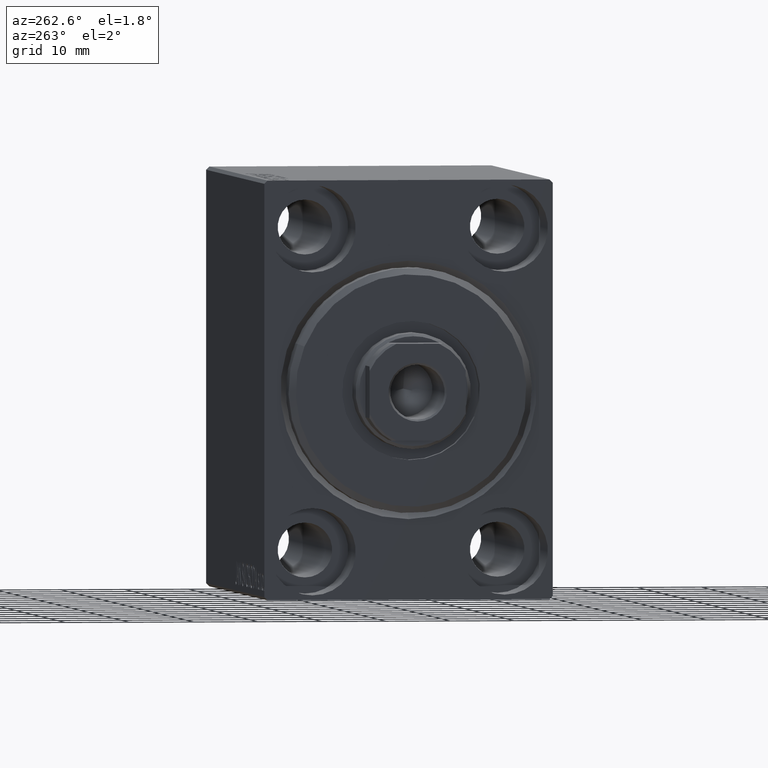
[diagram: clean part render]
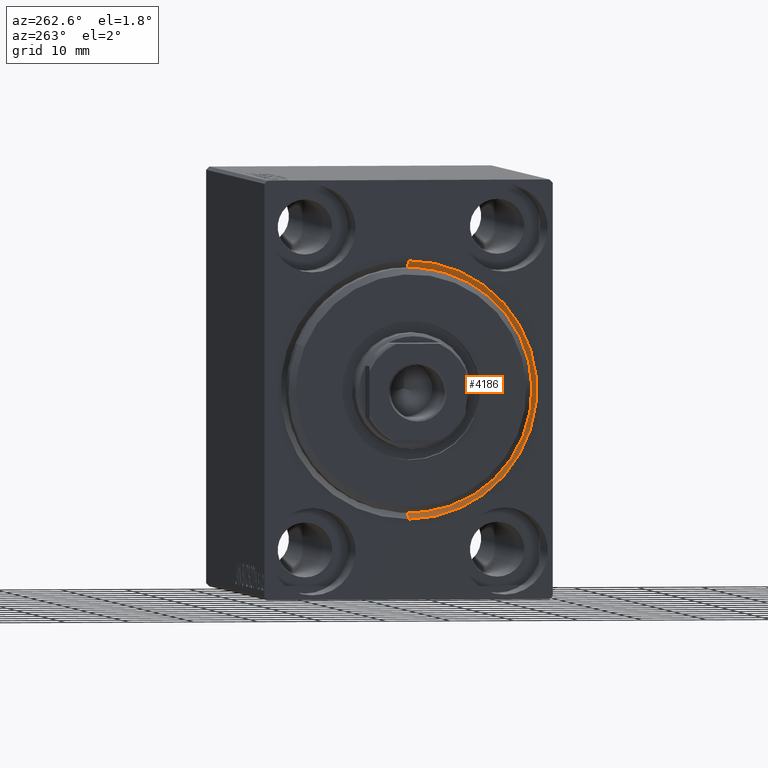
[diagram: same view with one face highlighted and labeled with its STEP entity id]
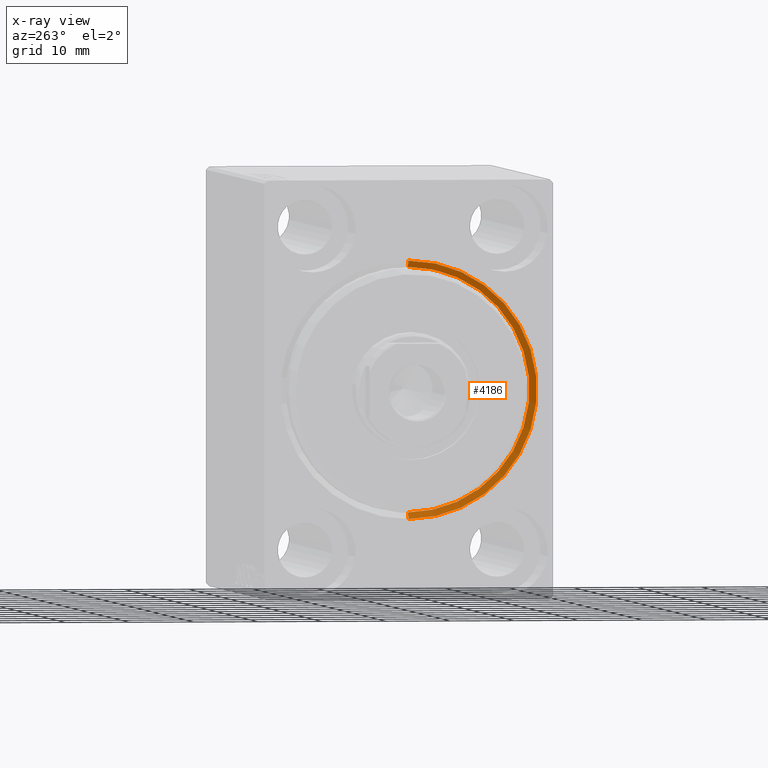
[diagram: x-ray of the same camera — body ghosted, the highlighted face saturated]
A machine part, auxiliary view. The second image highlights one B-rep face of the part: STEP entity #4186.
The next image is the same camera in x-ray: the body ghosted, the highlighted face saturated — about 0% of this face is hidden behind the body in this view.
In plain terms, the highlighted conical surface has half-angle 45 deg.
Its self-contained STEP definition (entity closure, byte-faithful):
#570 = LINE ( 'NONE', #41264, #7268 ) ;
#1030 = DIRECTION ( 'NONE',  ( -0.7071067811865463515, 8.659560562354948882E-17, -0.7071067811865487940 ) ) ;
#1656 = CARTESIAN_POINT ( 'NONE',  ( 1.000000000000000888, 0.000000000000000000, 0.000000000000000000 ) ) ;
#3137 = VERTEX_POINT ( 'NONE', #10680 ) ;
#4186 = ADVANCED_FACE ( 'NONE', ( #9356 ), #22786, .F. ) ;
#5849 = CIRCLE ( 'NONE', #29983, 20.00000000000000355 ) ;
#7268 = VECTOR ( 'NONE', #1030, 1000.000000000000000 ) ;
#7717 = EDGE_CURVE ( 'NONE', #3137, #27357, #570, .T. ) ;
#8830 = AXIS2_PLACEMENT_3D ( 'NONE', #1656, #11444, #38552 ) ;
#9356 = FACE_OUTER_BOUND ( 'NONE', #13486, .T. ) ;
#9583 = CARTESIAN_POINT ( 'NONE',  ( 1.000000000000000888, 0.000000000000000000, 0.000000000000000000 ) ) ;
#10680 = CARTESIAN_POINT ( 'NONE',  ( 1.000000000000000888, 2.326828918379970970E-15, -19.00000000000000000 ) ) ;
#11444 = DIRECTION ( 'NONE',  ( -1.000000000000000000, 0.000000000000000000, 0.000000000000000000 ) ) ;
#13486 = EDGE_LOOP ( 'NONE', ( #27554, #36055, #34281, #22710 ) ) ;
#13900 = VERTEX_POINT ( 'NONE', #25719 ) ;
#18066 = CIRCLE ( 'NONE', #8830, 19.00000000000000000 ) ;
#19918 = AXIS2_PLACEMENT_3D ( 'NONE', #9583, #39363, #23125 ) ;
#21692 = DIRECTION ( 'NONE',  ( -0.7071067811865463515, 0.000000000000000000, 0.7071067811865487940 ) ) ;
#22163 = CARTESIAN_POINT ( 'NONE',  ( 0.000000000000000000, 0.000000000000000000, 20.00000000000000355 ) ) ;
#22592 = CARTESIAN_POINT ( 'NONE',  ( 0.000000000000000000, 0.000000000000000000, 0.000000000000000000 ) ) ;
#22710 = ORIENTED_EDGE ( 'NONE', *, *, #32965, .F. ) ;
#22786 = CONICAL_SURFACE ( 'NONE', #19918, 19.00000000000000000, 0.7853981633974500554 ) ;
#23125 = DIRECTION ( 'NONE',  ( 0.000000000000000000, 0.000000000000000000, 1.000000000000000000 ) ) ;
#24815 = EDGE_CURVE ( 'NONE', #38062, #27357, #5849, .T. ) ;
#25719 = CARTESIAN_POINT ( 'NONE',  ( 1.000000000000000888, 0.000000000000000000, 19.00000000000000000 ) ) ;
#27357 = VERTEX_POINT ( 'NONE', #32946 ) ;
#27554 = ORIENTED_EDGE ( 'NONE', *, *, #29510, .F. ) ;
#28840 = DIRECTION ( 'NONE',  ( 1.000000000000000000, 0.000000000000000000, 0.000000000000000000 ) ) ;
#29510 = EDGE_CURVE ( 'NONE', #3137, #13900, #18066, .T. ) ;
#29983 = AXIS2_PLACEMENT_3D ( 'NONE', #22592, #28840, #36156 ) ;
#31918 = LINE ( 'NONE', #41718, #35031 ) ;
#32946 = CARTESIAN_POINT ( 'NONE',  ( 0.000000000000000000, 2.449293598294706907E-15, -20.00000000000000355 ) ) ;
#32965 = EDGE_CURVE ( 'NONE', #13900, #38062, #31918, .T. ) ;
#34281 = ORIENTED_EDGE ( 'NONE', *, *, #24815, .F. ) ;
#35031 = VECTOR ( 'NONE', #21692, 1000.000000000000000 ) ;
#36055 = ORIENTED_EDGE ( 'NONE', *, *, #7717, .T. ) ;
#36156 = DIRECTION ( 'NONE',  ( 0.000000000000000000, 0.000000000000000000, -1.000000000000000000 ) ) ;
#38062 = VERTEX_POINT ( 'NONE', #22163 ) ;
#38552 = DIRECTION ( 'NONE',  ( 0.000000000000000000, 0.000000000000000000, -1.000000000000000000 ) ) ;
#39363 = DIRECTION ( 'NONE',  ( -1.000000000000000000, 0.000000000000000000, 0.000000000000000000 ) ) ;
#41264 = CARTESIAN_POINT ( 'NONE',  ( 1.000000000000000888, 2.326828918379970970E-15, -19.00000000000000000 ) ) ;
#41718 = CARTESIAN_POINT ( 'NONE',  ( 1.000000000000000888, 0.000000000000000000, 19.00000000000000000 ) ) ;